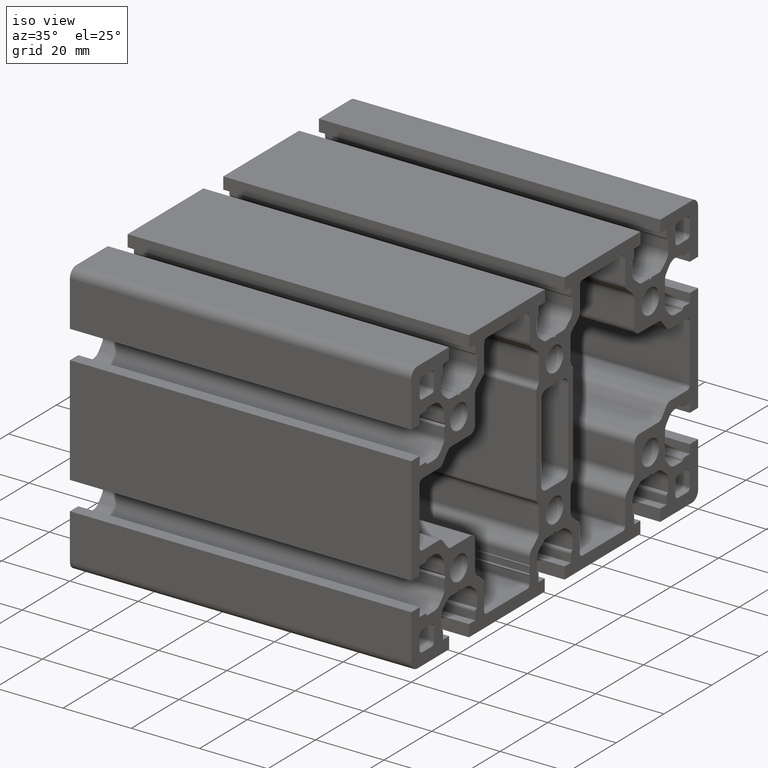
[diagram: clean part render]
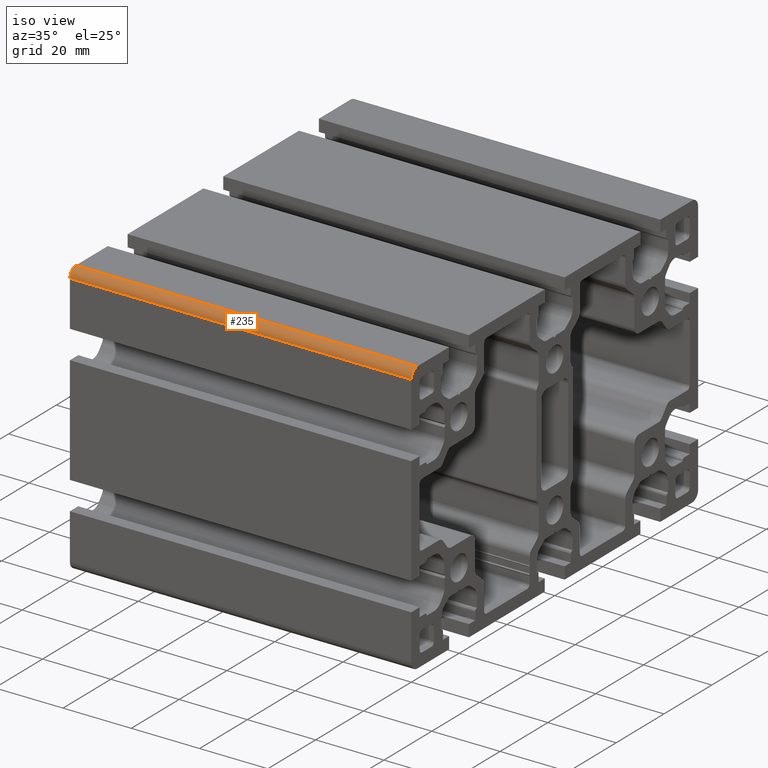
[diagram: same view with one face highlighted and labeled with its STEP entity id]
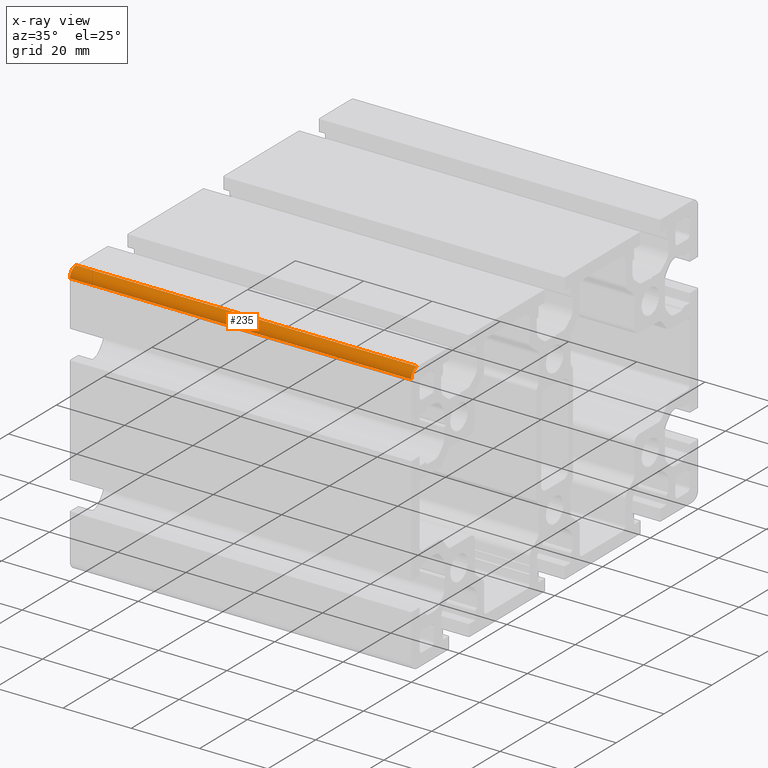
[diagram: x-ray of the same camera — body ghosted, the highlighted face saturated]
A machine part, iso view. The second image highlights one B-rep face of the part: STEP entity #235.
The next image is the same camera in x-ray: the body ghosted, the highlighted face saturated — about 0% of this face is hidden behind the body in this view.
In plain terms, the highlighted cylindrical surface (edge-blend (fillet) strip) has radius 2.5 mm, axis along (-1, -0, -0).
Its self-contained STEP definition (entity closure, byte-faithful):
#235 = ADVANCED_FACE ( 'NONE', ( #7352 ), #7435, .T. ) ;
#1963 = ORIENTED_EDGE ( 'NONE', *, *, #5271, .T. ) ;
#2027 = ORIENTED_EDGE ( 'NONE', *, *, #5530, .T. ) ;
#2255 = ORIENTED_EDGE ( 'NONE', *, *, #4701, .F. ) ;
#2269 = EDGE_LOOP ( 'NONE', ( #2027, #2255, #2801, #1963 ) ) ;
#2801 = ORIENTED_EDGE ( 'NONE', *, *, #11585, .F. ) ;
#3459 = CARTESIAN_POINT ( 'NONE',  ( 0.0000000000000000000, -57.49986200003427700, 39.99986200000160600 ) ) ;
#3578 = CARTESIAN_POINT ( 'NONE',  ( 100.0000000000000000, -59.99986200003370800, 37.49986200000162000 ) ) ;
#3751 = CARTESIAN_POINT ( 'NONE',  ( 100.0000000000000000, -57.49986200003427700, 39.99986200000160600 ) ) ;
#4264 = VECTOR ( 'NONE', #8653, 1000.000000000000000 ) ;
#4269 = LINE ( 'NONE', #8385, #4264 ) ;
#4370 = CARTESIAN_POINT ( 'NONE',  ( 100.0000000000000000, -57.49986200003427700, 37.49986200000217500 ) ) ;
#4701 = EDGE_CURVE ( 'NONE', #7346, #6496, #4269, .T. ) ;
#4820 = DIRECTION ( 'NONE',  ( 0.0000000000000000000, 0.0000000000000000000, 1.000000000000000000 ) ) ;
#4948 = AXIS2_PLACEMENT_3D ( 'NONE', #4370, #5406, #4820 ) ;
#5271 = EDGE_CURVE ( 'NONE', #7154, #7049, #9007, .T. ) ;
#5406 = DIRECTION ( 'NONE',  ( -1.000000000000000000, -0.0000000000000000000, -0.0000000000000000000 ) ) ;
#5530 = EDGE_CURVE ( 'NONE', #7049, #6496, #8894, .T. ) ;
#5874 = AXIS2_PLACEMENT_3D ( 'NONE', #9863, #9868, #9857 ) ;
#5925 = AXIS2_PLACEMENT_3D ( 'NONE', #8198, #8197, #8109 ) ;
#6496 = VERTEX_POINT ( 'NONE', #8514 ) ;
#7049 = VERTEX_POINT ( 'NONE', #3459 ) ;
#7154 = VERTEX_POINT ( 'NONE', #3751 ) ;
#7346 = VERTEX_POINT ( 'NONE', #3578 ) ;
#7352 = FACE_OUTER_BOUND ( 'NONE', #2269, .T. ) ;
#7435 = CYLINDRICAL_SURFACE ( 'NONE', #4948, 2.499999999999433300 ) ;
#8096 = DIRECTION ( 'NONE',  ( -1.000000000000000000, -0.0000000000000000000, -0.0000000000000000000 ) ) ;
#8109 = DIRECTION ( 'NONE',  ( 0.0000000000000000000, 0.0000000000000000000, -1.000000000000000000 ) ) ;
#8188 = CARTESIAN_POINT ( 'NONE',  ( 100.0000000000000000, -57.49986200003427700, 39.99986200000160600 ) ) ;
#8197 = DIRECTION ( 'NONE',  ( 1.000000000000000000, 0.0000000000000000000, 0.0000000000000000000 ) ) ;
#8198 = CARTESIAN_POINT ( 'NONE',  ( 0.0000000000000000000, -57.49986200003427700, 37.49986200000217500 ) ) ;
#8385 = CARTESIAN_POINT ( 'NONE',  ( 100.0000000000000000, -59.99986200003370800, 37.49986200000162000 ) ) ;
#8514 = CARTESIAN_POINT ( 'NONE',  ( 0.0000000000000000000, -59.99986200003370800, 37.49986200000162000 ) ) ;
#8653 = DIRECTION ( 'NONE',  ( -1.000000000000000000, -0.0000000000000000000, -0.0000000000000000000 ) ) ;
#8894 = CIRCLE ( 'NONE', #5925, 2.499999999999433300 ) ;
#8907 = VECTOR ( 'NONE', #8096, 1000.000000000000000 ) ;
#9007 = LINE ( 'NONE', #8188, #8907 ) ;
#9857 = DIRECTION ( 'NONE',  ( 0.0000000000000000000, 0.0000000000000000000, -1.000000000000000000 ) ) ;
#9863 = CARTESIAN_POINT ( 'NONE',  ( 100.0000000000000000, -57.49986200003427700, 37.49986200000217500 ) ) ;
#9868 = DIRECTION ( 'NONE',  ( 1.000000000000000000, 0.0000000000000000000, 0.0000000000000000000 ) ) ;
#10334 = CIRCLE ( 'NONE', #5874, 2.499999999999433300 ) ;
#11585 = EDGE_CURVE ( 'NONE', #7154, #7346, #10334, .T. ) ;